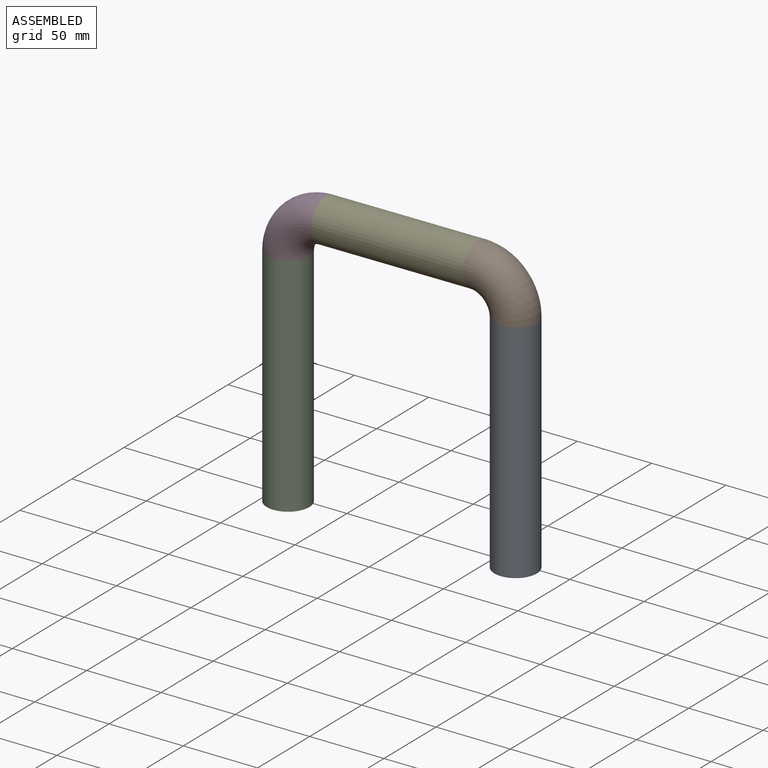
[diagram: assembled view]
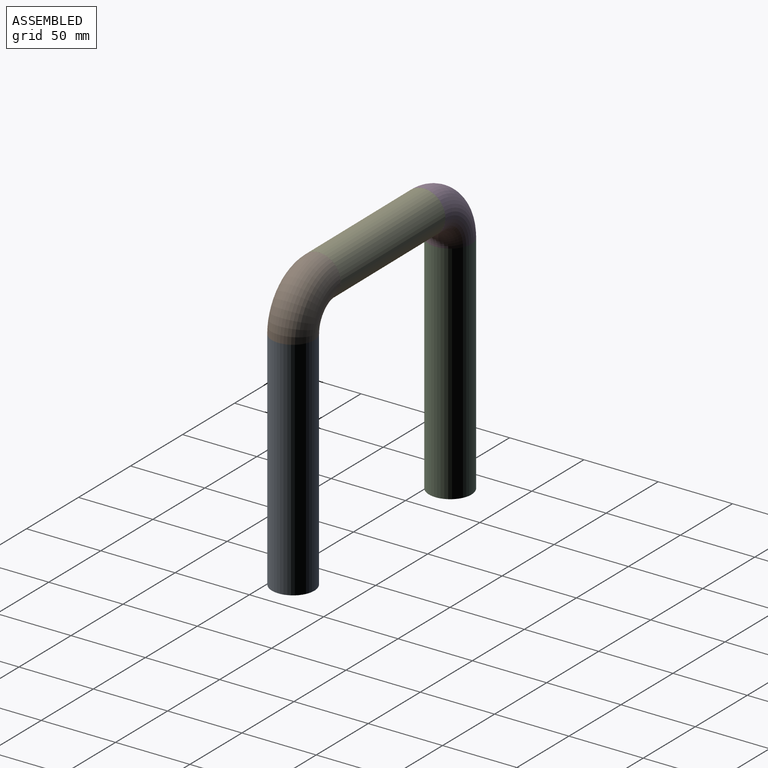
[diagram: assembled view, second angle]
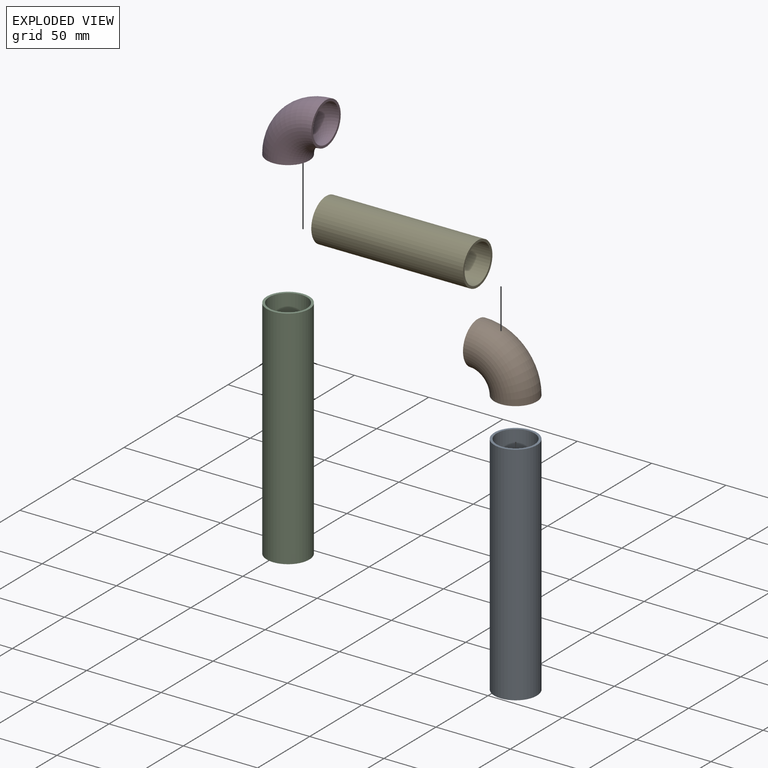
[diagram: exploded view]
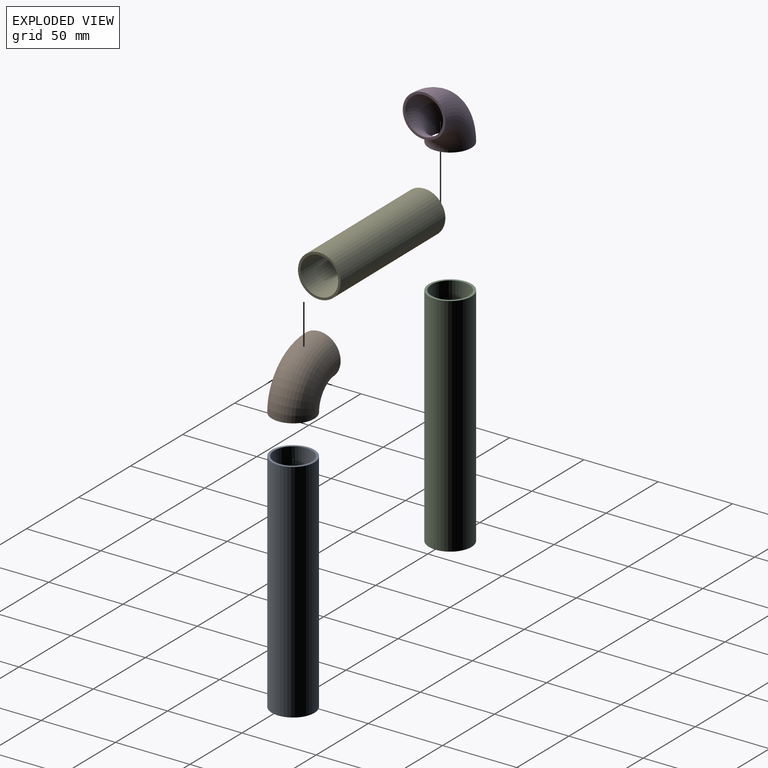
[diagram: exploded view, second angle]
ASSEMBLY  parts=5 mates=4
PART A: 4 faces, bbox 28.6x28.6x152.4 mm
  f0: cylinder r=12.7mm len=152.4mm, axis (0,0,-1), area 12161mm2, adj f2,f3
  f1: cylinder r=14.29mm len=152.4mm, axis (0,0,-1), area 13681.1mm2, adj f2,f3
  f2: plane 28.58x28.58mm, normal (0,0,1), area 134.6mm2, adj f0,f1
  f3: plane 28.58x28.58mm, normal (0,0,-1), area 134.6mm2, adj f0,f1
PART B: 4 faces, bbox 28.6x43x43 mm
  f0: torus R=25.4mm, axis (-1,0,0), area 3183.7mm2, adj f1,f2
  f1: plane 28.58x28.58mm, normal (0,0,-1), area 134.6mm2, adj f0,f3
  f2: plane 28.58x28.58mm, normal (0,1,0), area 134.6mm2, adj f0,f3
  f3: torus R=25.4mm, axis (-1,0,0), area 3581.7mm2, adj f1,f2
PART C: same geometry as A
PART D: same geometry as B
PART E: 4 faces, bbox 28.6x28.6x101.6 mm
  f0: cylinder r=12.7mm len=101.6mm, axis (0,0,-1), area 8107.3mm2, adj f2,f3
  f1: cylinder r=14.29mm len=101.6mm, axis (0,0,-1), area 9120.7mm2, adj f2,f3
  f2: plane 28.58x28.58mm, normal (0,0,1), area 134.6mm2, adj f0,f1
  f3: plane 28.58x28.58mm, normal (0,0,-1), area 134.6mm2, adj f0,f1
PLACE A rot(axis=(0,0,1),90.4deg) t=(112.7,108.38,0)mm
PLACE B rot(axis=(0,0,1),90.4deg) t=(112.7,108.38,152.4)mm
PLACE C rot(axis=(0,0,1),90.4deg) t=(-39.7,107.37,0)mm
PLACE D rot(axis=(-0.57,-0.58,0.58),120.2deg) t=(-14.3,107.54,177.8)mm
PLACE E rot(axis=(0,1,0),90deg) t=(-14.3,107.54,177.8)mm
MATE fastened D.f2 <-> C.f0  axis (0,0,-1) through (-39.7,107.37,152.4)mm
MATE fastened B.f1 <-> A.f0  axis (0,0,-1) through (112.7,108.38,152.4)mm
MATE fastened E.f0 <-> B.f2  axis (1,0.01,0) through (87.3,108.21,177.8)mm
MATE fastened E.f0 <-> D.f1  axis (-1,-0.01,0) through (-14.3,107.54,177.8)mm
